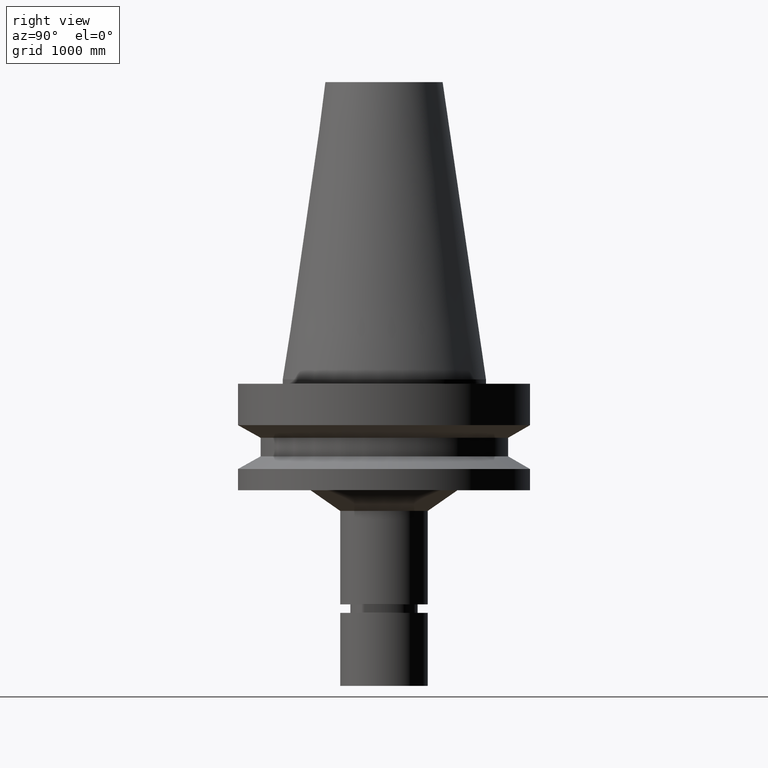
[diagram: clean part render]
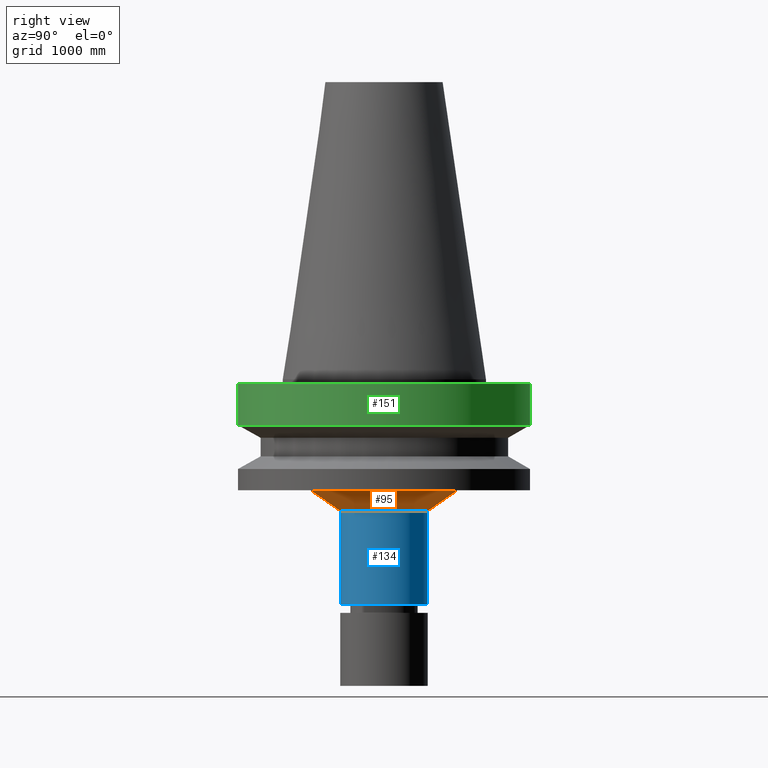
[diagram: same view with three faces highlighted in distinct colors, each labeled with its STEP entity id]
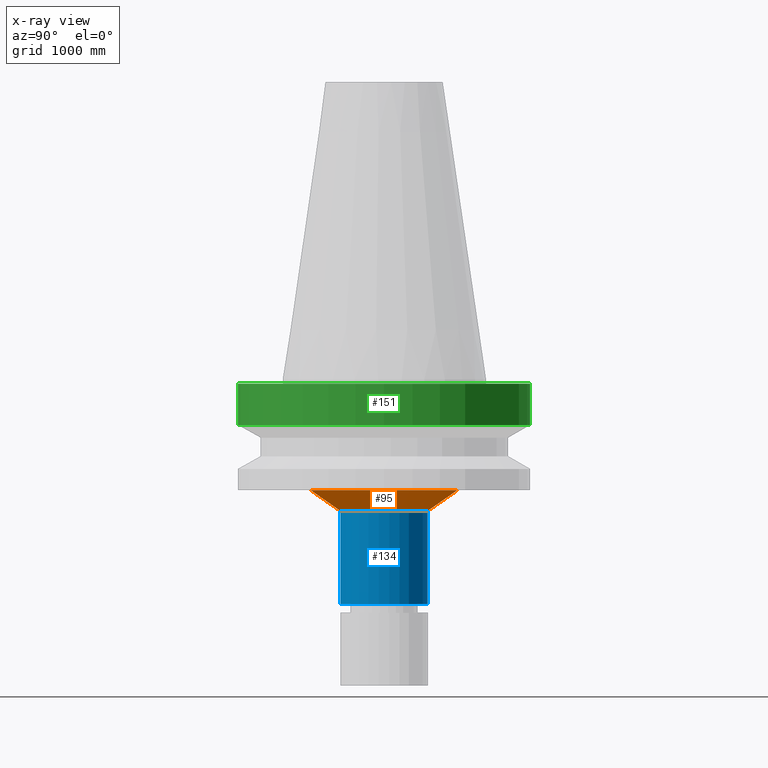
[diagram: x-ray of the same camera — body ghosted, the three highlighted faces saturated]
A machine part, right view with three faces highlighted in distinct colors.
The next image is the same camera in x-ray (body ghosted, the three faces saturated) — at least one of them is partly hidden behind the body in this view.
Their STEP definitions:

[orange] entity #95 — the highlighted conical surface has half-angle 55.144 deg.
#95=ADVANCED_FACE('Unnamed[1]',(#232,#233),#234,.T.);
#97=EDGE_CURVE('Unnamed[1]',#236,#236,#237,.T.);
#148=EDGE_CURVE('Unnamed[1]',#314,#314,#315,.T.);
#232=FACE_BOUND('',#415,.T.);
#233=FACE_BOUND('',#416,.T.);
#234=CONICAL_SURFACE('',#417,20.0717863357248,0.962446965226311);
#236=VERTEX_POINT('',#420);
#237=CIRCLE('',#421,25.1435726714495);
#314=VERTEX_POINT('',#517);
#315=CIRCLE('',#518,15.0000000000001);
#415=EDGE_LOOP('',(#616));
#416=EDGE_LOOP('',(#617));
#417=AXIS2_PLACEMENT_3D('',#618,#619,#620);
#420=CARTESIAN_POINT('',(2.32682891837996E-015,25.1435726714495,-37.9999999999999));
#421=AXIS2_PLACEMENT_3D('',#621,#622,#623);
#517=CARTESIAN_POINT('',(2.75941339741635E-015,15.0000000000001,-45.0646406676204));
#518=AXIS2_PLACEMENT_3D('',#707,#708,#709);
#616=ORIENTED_EDGE('',*,*,#97,.F.);
#617=ORIENTED_EDGE('',*,*,#148,.T.);
#618=CARTESIAN_POINT('',(2.54312115789815E-015,1.29903256465169E-014,-41.5323203338101));
#619=DIRECTION('',(-6.12323399573677E-017,1.40684069939023E-019,1.0));
#620=DIRECTION('',(-4.81853831597193E-033,1.0,-1.40684069939023E-019));
#621=CARTESIAN_POINT('',(2.32682891837996E-015,1.29908225877178E-014,-37.9999999999998));
#622=DIRECTION('',(-6.12323399573677E-017,1.40684069939017E-019,1.0));
#623=DIRECTION('',(-4.81853831597193E-033,1.0,-1.40684069939017E-019));
#707=CARTESIAN_POINT('',(2.75941339741635E-015,1.2989828705316E-014,-45.0646406676204));
#708=DIRECTION('',(-6.12323399573677E-017,1.40684069939033E-019,1.0));
#709=DIRECTION('',(-4.81853831597193E-033,1.0,-1.40684069939033E-019));

[blue] entity #134 — the highlighted cylindrical surface (bore or boss wall) has radius 381 mm, axis along (-0, 0, 1).
#134=ADVANCED_FACE('Unnamed[1]',(#292,#293),#294,.T.);
#148=EDGE_CURVE('Unnamed[1]',#314,#314,#315,.T.);
#169=EDGE_CURVE('Unnamed[1]',#347,#347,#348,.T.);
#292=FACE_BOUND('',#489,.T.);
#293=FACE_BOUND('',#490,.T.);
#294=CYLINDRICAL_SURFACE('',#491,15.0000000000002);
#314=VERTEX_POINT('',#517);
#315=CIRCLE('',#518,15.0000000000001);
#347=VERTEX_POINT('',#559);
#348=CIRCLE('',#560,15.0000000000002);
#489=EDGE_LOOP('',(#682));
#490=EDGE_LOOP('',(#683));
#491=AXIS2_PLACEMENT_3D('',#684,#685,#686);
#517=CARTESIAN_POINT('',(2.75941339741635E-015,15.0000000000001,-45.0646406676204));
#518=AXIS2_PLACEMENT_3D('',#707,#708,#709);
#559=CARTESIAN_POINT('',(4.72101341071301E-015,15.0000000000002,-77.0999999999993));
#560=AXIS2_PLACEMENT_3D('',#743,#744,#745);
#682=ORIENTED_EDGE('',*,*,#148,.F.);
#683=ORIENTED_EDGE('',*,*,#169,.T.);
#684=CARTESIAN_POINT('',(3.74021340406468E-015,1.29875752729496E-014,-61.0823203338099));
#685=DIRECTION('',(-6.12323399573677E-017,1.40684069939032E-019,1.0));
#686=DIRECTION('',(-4.81853831597193E-033,1.0,-1.40684069939032E-019));
#707=CARTESIAN_POINT('',(2.75941339741635E-015,1.2989828705316E-014,-45.0646406676204));
#708=DIRECTION('',(-6.12323399573677E-017,1.40684069939033E-019,1.0));
#709=DIRECTION('',(-4.81853831597193E-033,1.0,-1.40684069939033E-019));
#743=CARTESIAN_POINT('',(4.72101341071301E-015,1.29853218405832E-014,-77.0999999999994));
#744=DIRECTION('',(-6.12323399573677E-017,1.40684069939032E-019,1.0));
#745=DIRECTION('',(-4.81853831597193E-033,1.0,-1.40684069939032E-019));

[green] entity #151 — the highlighted cylindrical surface (bore or boss wall) has radius 1270 mm, axis along (-0, 0, 1).
#107=EDGE_CURVE('Unnamed[1]',#250,#250,#251,.T.);
#146=EDGE_CURVE('Unnamed[1]',#311,#311,#312,.T.);
#151=ADVANCED_FACE('Unnamed[1]',(#318,#319),#320,.T.);
#250=VERTEX_POINT('',#437);
#251=CIRCLE('',#438,50.0);
#311=VERTEX_POINT('',#513);
#312=CIRCLE('',#514,50.0);
#318=FACE_BOUND('',#522,.T.);
#319=FACE_BOUND('',#523,.T.);
#320=CYLINDRICAL_SURFACE('',#524,50.0);
#437=CARTESIAN_POINT('',(9.61347737330674E-016,50.0,-15.7));
#438=AXIS2_PLACEMENT_3D('',#634,#635,#636);
#513=CARTESIAN_POINT('',(9.18485099360509E-017,50.0,-1.49999999999999));
#514=AXIS2_PLACEMENT_3D('',#704,#705,#706);
#522=EDGE_LOOP('',(#711));
#523=EDGE_LOOP('',(#712));
#524=AXIS2_PLACEMENT_3D('',#713,#714,#715);
#634=CARTESIAN_POINT('',(9.61347737330675E-016,1.29939598424774E-014,-15.7));
#635=DIRECTION('',(-6.12323399573677E-017,1.40684069939013E-019,1.0));
#636=DIRECTION('',(-4.81853831597193E-033,1.0,-1.40684069939013E-019));
#704=CARTESIAN_POINT('',(9.18485099360515E-017,1.29959575562706E-014,-1.5));
#705=DIRECTION('',(-6.12323399573677E-017,1.40684069939013E-019,1.0));
#706=DIRECTION('',(-4.81853831597193E-033,1.0,-1.40684069939013E-019));
#711=ORIENTED_EDGE('',*,*,#146,.F.);
#712=ORIENTED_EDGE('',*,*,#107,.T.);
#713=CARTESIAN_POINT('',(5.26598123633363E-016,1.2994958699374E-014,-8.60000000000002));
#714=DIRECTION('',(-6.12323399573677E-017,1.40684069939013E-019,1.0));
#715=DIRECTION('',(-4.81853831597193E-033,1.0,-1.40684069939013E-019));